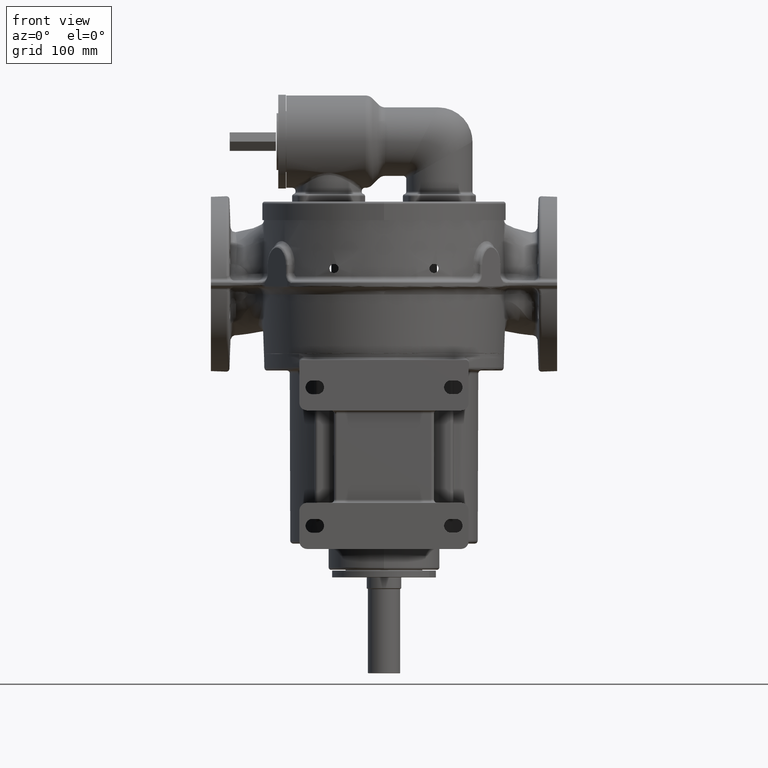
[diagram: clean part render]
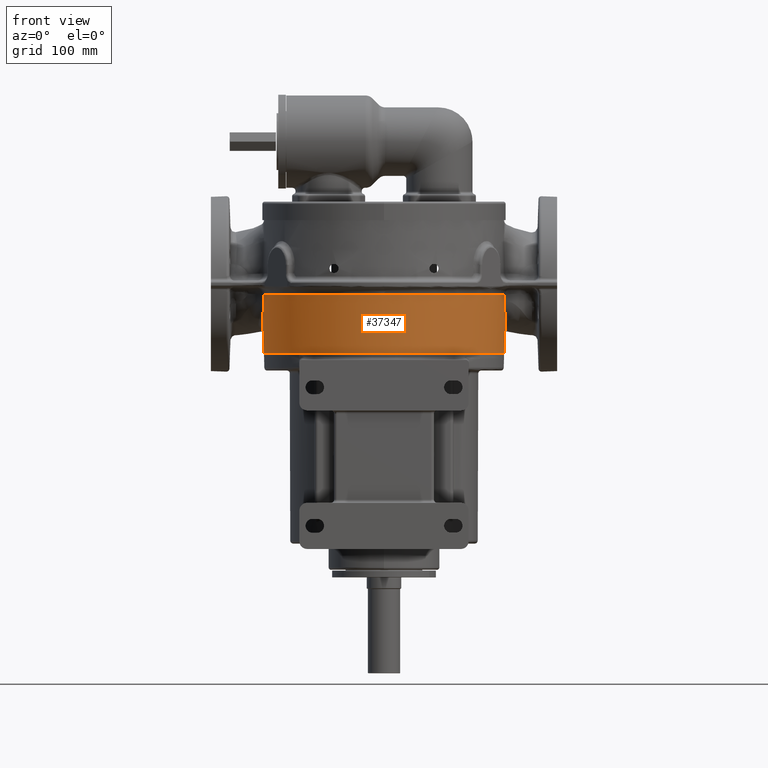
[diagram: same view with one face highlighted and labeled with its STEP entity id]
A machine part, front view. The second image highlights one B-rep face of the part: STEP entity #37347.
In plain terms, the highlighted face is a freeform B-spline surface patch.
Its self-contained STEP definition (entity closure, byte-faithful):
#4950=CARTESIAN_POINT('',(1.561011061925E2,1.800000000014E2,6.395302536963E0));
#4951=CARTESIAN_POINT('',(1.561010881547E2,1.790996274066E2,6.395301918553E0));
#4952=CARTESIAN_POINT('',(1.560855357934E2,1.772977593066E2,6.395294494468E0));
#4953=CARTESIAN_POINT('',(1.560152322695E2,1.745920073633E2,6.395284451513E0));
#4954=CARTESIAN_POINT('',(1.558979004679E2,1.718853024360E2,6.395272905925E0));
#4955=CARTESIAN_POINT('',(1.557334798918E2,1.691792255095E2,6.395263901856E0));
#4956=CARTESIAN_POINT('',(1.555220044078E2,1.664754681074E2,6.395258708309E0));
#4957=CARTESIAN_POINT('',(1.552635771838E2,1.637757000362E2,6.395258328091E0));
#4958=CARTESIAN_POINT('',(1.549583695249E2,1.610815513664E2,6.395262817924E0));
#4959=CARTESIAN_POINT('',(1.546066495006E2,1.583947960569E2,6.395271477037E0));
#4960=CARTESIAN_POINT('',(1.542085807965E2,1.557160031679E2,6.395282790548E0));
#4961=CARTESIAN_POINT('',(1.537642626366E2,1.530454206670E2,6.395294540302E0));
#4962=CARTESIAN_POINT('',(1.532737852086E2,1.503833778918E2,6.395303478121E0));
#4963=CARTESIAN_POINT('',(1.527372148402E2,1.477301779022E2,6.395306572990E0));
#4964=CARTESIAN_POINT('',(1.521545841324E2,1.450860738401E2,6.395306418725E0));
#4965=CARTESIAN_POINT('',(1.515259182001E2,1.424513834775E2,6.395304613126E0));
#4966=CARTESIAN_POINT('',(1.508511658972E2,1.398262338810E2,6.395302497609E0));
#4967=CARTESIAN_POINT('',(1.501305495170E2,1.372118545019E2,6.395300953928E0));
#4968=CARTESIAN_POINT('',(1.493645292038E2,1.346100844681E2,6.395300451416E0));
#4969=CARTESIAN_POINT('',(1.485536136621E2,1.320226232942E2,6.395301022631E0));
#4970=CARTESIAN_POINT('',(1.476983676743E2,1.294510684097E2,6.395302282427E0));
#4971=CARTESIAN_POINT('',(1.467989581345E2,1.268956986596E2,6.395303373951E0));
#4972=CARTESIAN_POINT('',(1.458555587585E2,1.243568855477E2,6.395303187749E0));
#4973=CARTESIAN_POINT('',(1.448683202905E2,1.218349759248E2,6.395299561022E0));
#4974=CARTESIAN_POINT('',(1.438373873194E2,1.193303452807E2,6.395293121773E0));
#4975=CARTESIAN_POINT('',(1.427628981925E2,1.168433908555E2,6.395286432201E0));
#4976=CARTESIAN_POINT('',(1.416449775614E2,1.143745084936E2,6.395280983111E0));
#4977=CARTESIAN_POINT('',(1.404837441043E2,1.119241277934E2,6.395277889190E0));
#4978=CARTESIAN_POINT('',(1.392798857865E2,1.094938278426E2,6.395277697190E0));
#4979=CARTESIAN_POINT('',(1.380341315321E2,1.070850912188E2,6.395280427509E0));
#4980=CARTESIAN_POINT('',(1.367473594186E2,1.046995204745E2,6.395285559130E0));
#4981=CARTESIAN_POINT('',(1.354201318425E2,1.023379876300E2,6.395292045053E0));
#4982=CARTESIAN_POINT('',(1.340526122517E2,1.000006485414E2,6.395298303258E0));
#4983=CARTESIAN_POINT('',(1.326450262397E2,9.768781613449E1,6.395302284679E0));
#4984=CARTESIAN_POINT('',(1.311975626438E2,9.539977215031E1,6.395301234147E0));
#4985=CARTESIAN_POINT('',(1.297103805266E2,9.313678947377E1,6.395297434992E0));
#4986=CARTESIAN_POINT('',(1.281836467180E2,9.089918582971E1,6.395292905379E0));
#4987=CARTESIAN_POINT('',(1.266174209752E2,8.868716362434E1,6.395289110673E0));
#4988=CARTESIAN_POINT('',(1.250121564484E2,8.650150907130E1,6.395287036400E0));
#4989=CARTESIAN_POINT('',(1.233689528869E2,8.434380120879E1,6.395287161151E0));
#4990=CARTESIAN_POINT('',(1.216888449211E2,8.221539061776E1,6.395289451885E0));
#4991=CARTESIAN_POINT('',(1.199730305825E2,8.011769962551E1,6.395293375113E0));
#4992=CARTESIAN_POINT('',(1.182218742209E2,7.805104830256E1,6.395297860026E0));
#4993=CARTESIAN_POINT('',(1.164356246478E2,7.601565166584E1,6.395301473241E0));
#4994=CARTESIAN_POINT('',(1.146145403215E2,7.401176288247E1,6.395301788816E0));
#4995=CARTESIAN_POINT('',(1.127588624084E2,7.203964196743E1,6.395297973759E0));
#4996=CARTESIAN_POINT('',(1.108688203879E2,7.009956331104E1,6.395292831132E0));
#4997=CARTESIAN_POINT('',(1.089446614098E2,6.819184017424E1,6.395287951828E0));
#4998=CARTESIAN_POINT('',(1.069865139335E2,6.631670217544E1,6.395284616494E0));
#4999=CARTESIAN_POINT('',(1.049954306318E2,6.447525522759E1,6.395283549214E0));
#5000=CARTESIAN_POINT('',(1.029726921531E2,6.266871339772E1,6.395284974215E0));
#5001=CARTESIAN_POINT('',(1.009196592105E2,6.089825415515E1,6.395288591196E0));
#5002=CARTESIAN_POINT('',(9.883744180347E1,5.916473575508E1,6.395293600280E0));
#5003=CARTESIAN_POINT('',(9.672625334910E1,5.746824256197E1,6.395298649051E0));
#5004=CARTESIAN_POINT('',(9.458642466054E1,5.580898867224E1,6.395302064397E0));
#5005=CARTESIAN_POINT('',(9.241823915157E1,5.418716956784E1,6.395301003498E0));
#5006=CARTESIAN_POINT('',(9.022197058568E1,5.260299756631E1,6.395296799067E0));
#5007=CARTESIAN_POINT('',(8.799789716745E1,5.105670966014E1,6.395291811282E0));
#5008=CARTESIAN_POINT('',(8.574622958639E1,4.954851856544E1,6.395287520608E0));
#5009=CARTESIAN_POINT('',(8.346740648088E1,4.807881541384E1,6.395285009118E0));
#5010=CARTESIAN_POINT('',(8.116297260504E1,4.664866375100E1,6.395284825069E0));
#5011=CARTESIAN_POINT('',(7.883434741417E1,4.525894852780E1,6.395287008211E0));
#5012=CARTESIAN_POINT('',(7.648318729396E1,4.391060113263E1,6.395291084363E0));
#5013=CARTESIAN_POINT('',(7.411020744526E1,4.260393895643E1,6.395296059036E0));
#5014=CARTESIAN_POINT('',(7.171566161182E1,4.133903481413E1,6.395300483709E0));
#5015=CARTESIAN_POINT('',(6.929990013855E1,4.011603769632E1,6.395302235178E0));
#5016=CARTESIAN_POINT('',(6.686323663148E1,3.893509581703E1,6.395299365579E0));
#5017=CARTESIAN_POINT('',(6.440597391753E1,3.779637365125E1,6.395294576587E0));
#5018=CARTESIAN_POINT('',(6.192845463378E1,3.670007098501E1,6.395289635169E0));
#5019=CARTESIAN_POINT('',(5.943084349647E1,3.564633446666E1,6.395285926284E0));
#5020=CARTESIAN_POINT('',(5.691421675962E1,3.463570232688E1,6.395284300694E0));
#5021=CARTESIAN_POINT('',(5.438028321813E1,3.366889816698E1,6.395285107307E0));
#5022=CARTESIAN_POINT('',(5.183065876973E1,3.274652135572E1,6.395288173040E0));
#5023=CARTESIAN_POINT('',(4.926695671644E1,3.186908348212E1,6.395292824674E0));
#5024=CARTESIAN_POINT('',(4.668949458705E1,3.103661175792E1,6.395297834283E0));
#5025=CARTESIAN_POINT('',(4.409863700357E1,3.024917578264E1,6.395301659711E0));
#5026=CARTESIAN_POINT('',(4.149472512969E1,2.950685416295E1,6.395301566323E0));
#5027=CARTESIAN_POINT('',(3.887809700151E1,2.880974382333E1,6.395297676989E0));
#5028=CARTESIAN_POINT('',(3.624908540243E1,2.815795920436E1,6.395292677223E0));
#5029=CARTESIAN_POINT('',(3.360802780066E1,2.755163248900E1,6.395288093356E0));
#5030=CARTESIAN_POINT('',(3.095523949825E1,2.699091601857E1,6.395285128579E0));
#5031=CARTESIAN_POINT('',(2.829240460029E1,2.647623330755E1,6.395284433582E0));
#5032=CARTESIAN_POINT('',(2.562120015593E1,2.600792255874E1,6.395286157983E0));
#5033=CARTESIAN_POINT('',(2.294347415969E1,2.558627000420E1,6.395289930398E0));
#5034=CARTESIAN_POINT('',(2.026035547525E1,2.521137399884E1,6.395294875802E0));
#5035=CARTESIAN_POINT('',(1.757206295630E1,2.488319834215E1,6.395299594008E0));
#5036=CARTESIAN_POINT('',(1.487899088046E1,2.460175456917E1,6.395302270755E0));
#5037=CARTESIAN_POINT('',(1.218148224292E1,2.436706358036E1,6.395300278137E0));
#5038=CARTESIAN_POINT('',(9.479880907659E0,2.417916588464E1,6.395295743931E0));
#5039=CARTESIAN_POINT('',(6.774566762511E0,2.403812076593E1,6.395290725055E0));
#5040=CARTESIAN_POINT('',(4.065782097333E0,2.394400107494E1,6.395286667043E0));
#5041=CARTESIAN_POINT('',(1.354369898144E0,2.389691642670E1,6.395284543997E0));
#5042=CARTESIAN_POINT('',(-1.357774108197E0,2.389694655894E1,6.395284813695E0));
#5043=CARTESIAN_POINT('',(-4.068975966734E0,2.394408622210E1,6.395287418073E0));
#5044=CARTESIAN_POINT('',(-6.777383150155E0,2.403824496923E1,6.395291791992E0));
#5045=CARTESIAN_POINT('',(-9.482471797201E0,2.417932446016E1,6.395296831877E0));
#5046=CARTESIAN_POINT('',(-1.218393297060E1,2.436725591925E1,6.395301052887E0));
#5047=CARTESIAN_POINT('',(-1.488140519171E1,2.460198565101E1,6.395302025599E0));
#5048=CARTESIAN_POINT('',(-1.757454020262E1,2.488347833017E1,6.395298645198E0));
#5049=CARTESIAN_POINT('',(-2.026299413918E1,2.521171820946E1,6.395293739426E0));
#5050=CARTESIAN_POINT('',(-2.294637520029E1,2.558669902777E1,6.395288933452E0));
#5051=CARTESIAN_POINT('',(-2.562444894069E1,2.600846163545E1,6.395285541561E0));
#5052=CARTESIAN_POINT('',(-2.829574993061E1,2.647684973759E1,6.395284323734E0));
#5053=CARTESIAN_POINT('',(-3.095850969105E1,2.699157883310E1,6.395285541689E0));
#5054=CARTESIAN_POINT('',(-3.361097408040E1,2.755228413610E1,6.395288933683E0));
#5055=CARTESIAN_POINT('',(-3.625171981890E1,2.815858956713E1,6.395293739696E0));
#5056=CARTESIAN_POINT('',(-3.888054251967E1,2.881037345755E1,6.395298645471E0));
#5057=CARTESIAN_POINT('',(-4.149707363356E1,2.950750195634E1,6.395302025601E0));
#5058=CARTESIAN_POINT('',(-4.410098609784E1,3.024986717090E1,6.395301053085E0));
#5059=CARTESIAN_POINT('',(-4.669194182200E1,3.103737794051E1,6.395296838046E0));
#5060=CARTESIAN_POINT('',(-4.926958373206E1,3.186995551426E1,6.395291806576E0));
#5061=CARTESIAN_POINT('',(-5.183359888397E1,3.274755410244E1,6.395287442177E0));
#5062=CARTESIAN_POINT('',(-5.438346132033E1,3.367007831067E1,6.395284846697E0));
#5063=CARTESIAN_POINT('',(-5.691740733548E1,3.463695187366E1,6.395284583797E0));
#5064=CARTESIAN_POINT('',(-5.943387105789E1,3.564758280179E1,6.395286710150E0));
#5065=CARTESIAN_POINT('',(-6.193110950574E1,3.670122053090E1,6.395290766767E0));
#5066=CARTESIAN_POINT('',(-6.440837589845E1,3.779746277502E1,6.395295778384E0));
#5067=CARTESIAN_POINT('',(-6.686546996254E1,3.893615513801E1,6.395300298867E0));
#5068=CARTESIAN_POINT('',(-6.930205830838E1,4.011710697998E1,6.395302269311E0));
#5069=CARTESIAN_POINT('',(-7.171783441329E1,4.134015803422E1,6.395299565970E0));
#5070=CARTESIAN_POINT('',(-7.411248549657E1,4.260516664769E1,6.395294822584E0));
#5071=CARTESIAN_POINT('',(-7.648564748265E1,4.391198162835E1,6.395289855349E0));
#5072=CARTESIAN_POINT('',(-7.883710328121E1,4.526055901497E1,6.395286066772E0));
#5073=CARTESIAN_POINT('',(-8.116583213119E1,4.665040386003E1,6.395284333428E0));
#5074=CARTESIAN_POINT('',(-8.347020973257E1,4.808059005701E1,6.395285027773E0));
#5075=CARTESIAN_POINT('',(-8.574878964523E1,4.955020366442E1,6.395288000671E0));
#5076=CARTESIAN_POINT('',(-8.800015001674E1,5.105824902187E1,6.395292601349E0));
#5077=CARTESIAN_POINT('',(-9.022405089975E1,5.260447168853E1,6.395297625985E0));
#5078=CARTESIAN_POINT('',(-9.242022379964E1,5.418862770902E1,6.395301547002E0));
#5079=CARTESIAN_POINT('',(-9.458839850748E1,5.581049151994E1,6.395301677234E0));
#5080=CARTESIAN_POINT('',(-9.672829335290E1,5.746985180744E1,6.395297892596E0));
#5081=CARTESIAN_POINT('',(-9.883961683971E1,5.916651290020E1,6.395292919985E0));
#5082=CARTESIAN_POINT('',(-1.009220528088E2,6.090027949594E1,6.395288296708E0));
#5083=CARTESIAN_POINT('',(-1.029753126636E2,6.267101147589E1,6.395285247165E0));
#5084=CARTESIAN_POINT('',(-1.049980719837E2,6.447765590533E1,6.395284442804E0));
#5085=CARTESIAN_POINT('',(-1.069890371293E2,6.631907879568E1,6.395286056610E0));
#5086=CARTESIAN_POINT('',(-1.089468710857E2,6.819399640278E1,6.395289741389E0));
#5087=CARTESIAN_POINT('',(-1.108707638465E2,7.010152607853E1,6.395294649588E0));
#5088=CARTESIAN_POINT('',(-1.127606109416E2,7.204146975288E1,6.395299401963E0));
#5089=CARTESIAN_POINT('',(-1.146161615243E2,7.401351683565E1,6.395302235825E0));
#5090=CARTESIAN_POINT('',(-1.164371890135E2,7.601740325263E1,6.395300467150E0));
#5091=CARTESIAN_POINT('',(-1.182234546354E2,7.805288018010E1,6.395296066659E0));
#5092=CARTESIAN_POINT('',(-1.199746854906E2,8.011968511683E1,6.395291149663E0));
#5093=CARTESIAN_POINT('',(-1.216906728758E2,8.221766279571E1,6.395287158839E0));
#5094=CARTESIAN_POINT('',(-1.233708582988E2,8.434625798157E1,6.395285076404E0));
#5095=CARTESIAN_POINT('',(-1.250140151923E2,8.650399532831E1,6.395285360036E0));
#5096=CARTESIAN_POINT('',(-1.266191250790E2,8.868952973273E1,6.395287948686E0));
#5097=CARTESIAN_POINT('',(-1.281851139587E2,9.090129957292E1,6.395292268377E0));
#5098=CARTESIAN_POINT('',(-1.297117195877E2,9.313879012508E1,6.395297206954E0));
#5099=CARTESIAN_POINT('',(-1.311988339655E2,9.540174382165E1,6.395301250232E0));
#5100=CARTESIAN_POINT('',(-1.326462923897E2,9.768985539350E1,6.395301998042E0));
#5101=CARTESIAN_POINT('',(-1.340539237457E2,1.000028438500E2,6.395298077657E0));
#5102=CARTESIAN_POINT('',(-1.354215360704E2,1.023404326625E2,6.395292432970E0));
#5103=CARTESIAN_POINT('',(-1.367489028048E2,1.047023175589E2,6.395286821066E0));
#5104=CARTESIAN_POINT('',(-1.380358485035E2,1.070883372326E2,6.395282676255E0));
#5105=CARTESIAN_POINT('',(-1.392816161162E2,1.094972452186E2,6.395280874116E0));
#5106=CARTESIAN_POINT('',(-1.404853876484E2,1.119275224738E2,6.395281784092E0));
#5107=CARTESIAN_POINT('',(-1.416463993202E2,1.143775825921E2,6.395285245777E0));
#5108=CARTESIAN_POINT('',(-1.427641418092E2,1.168462045534E2,6.395290585970E0));
#5109=CARTESIAN_POINT('',(-1.438385477151E2,1.193330961283E2,6.395296588797E0));
#5110=CARTESIAN_POINT('',(-1.448694636610E2,1.218378209874E2,6.395301637379E0));
#5111=CARTESIAN_POINT('',(-1.458567448341E2,1.243599889603E2,6.395303200263E0));
#5112=CARTESIAN_POINT('',(-1.468002337811E2,1.268992174131E2,6.395302606567E0));
#5113=CARTESIAN_POINT('',(-1.476997519898E2,1.294551020344E2,6.395301416291E0));
#5114=CARTESIAN_POINT('',(-1.485551420260E2,1.320273439963E2,6.395300600210E0));
#5115=CARTESIAN_POINT('',(-1.493660915136E2,1.346152229218E2,6.395300752337E0));
#5116=CARTESIAN_POINT('',(-1.501319905412E2,1.372169174052E2,6.395302028554E0));
#5117=CARTESIAN_POINT('',(-1.508523765636E2,1.398307988519E2,6.395304157577E0));
#5118=CARTESIAN_POINT('',(-1.515268063592E2,1.424549909010E2,6.395306448102E0));
#5119=CARTESIAN_POINT('',(-1.521552306920E2,1.450889098946E2,6.395307767263E0));
#5120=CARTESIAN_POINT('',(-1.527376765015E2,1.477323790737E2,6.395306662102E0));
#5121=CARTESIAN_POINT('',(-1.532741225976E2,1.503851352980E2,6.395300929385E0));
#5122=CARTESIAN_POINT('',(-1.537645266156E2,1.530469327146E2,6.395289286650E0));
#5123=CARTESIAN_POINT('',(-1.542088099696E2,1.557174595379E2,6.395276043932E0));
#5124=CARTESIAN_POINT('',(-1.546068707061E2,1.583963700013E2,6.395263993567E0));
#5125=CARTESIAN_POINT('',(-1.549586060725E2,1.610834753111E2,6.395255338684E0));
#5126=CARTESIAN_POINT('',(-1.552638031481E2,1.637778566459E2,6.395251442647E0));
#5127=CARTESIAN_POINT('',(-1.555221991248E2,1.664777092653E2,6.395252872264E0));
#5128=CARTESIAN_POINT('',(-1.557336294549E2,1.691813940293E2,6.395259400021E0));
#5129=CARTESIAN_POINT('',(-1.558979986092E2,1.718872267570E2,6.395269885458E0));
#5130=CARTESIAN_POINT('',(-1.560152808343E2,1.745935030258E2,6.395282737809E0));
#5131=CARTESIAN_POINT('',(-1.560855473034E2,1.772986305814E2,6.395294213536E0));
#5132=CARTESIAN_POINT('',(-1.561010867243E2,1.790999407367E2,6.395301291862E0));
#5133=CARTESIAN_POINT('',(-1.561011061723E2,1.799999999986E2,6.395301959033E0));
#5135=DIRECTION('',(-3.489949670254E-2,-3.831053119299E-8,9.993908270191E-1));
#5136=VECTOR('',#5135,3.826493888146E1);
#5137=CARTESIAN_POINT('',(-1.561011061723E2,1.799999999986E2,6.395301959033E0));
#5138=LINE('',#5137,#5136);
#5139=CARTESIAN_POINT('',(-1.574365332806E2,1.799999985326E2,4.463693087361E1));
#5140=CARTESIAN_POINT('',(-1.574705101607E2,1.787291430152E2,4.561096933374E1));
#5141=CARTESIAN_POINT('',(-1.575074001886E2,1.763169526623E2,4.755767057867E1));
#5142=CARTESIAN_POINT('',(-1.574964064174E2,1.731590694879E2,5.032316745607E1));
#5143=CARTESIAN_POINT('',(-1.574351777946E2,1.701114821600E2,5.319924988413E1));
#5144=CARTESIAN_POINT('',(-1.573196541213E2,1.669943816010E2,5.634693446265E1));
#5145=CARTESIAN_POINT('',(-1.572055504602E2,1.648297872006E2,5.883642655558E1));
#5146=CARTESIAN_POINT('',(-1.571403439119E2,1.637408037734E2,6.017025638773E1));
#5148=CARTESIAN_POINT('',(-1.571403439119E2,1.637408037734E2,6.017025638773E1));
#5149=CARTESIAN_POINT('',(-1.570938505524E2,1.629632393486E2,6.112095187555E1));
#5150=CARTESIAN_POINT('',(-1.569985231517E2,1.614908936678E2,6.310102839909E1));
#5151=CARTESIAN_POINT('',(-1.568538413817E2,1.594286426921E2,6.630548404181E1));
#5152=CARTESIAN_POINT('',(-1.567524447110E2,1.578082047495E2,6.975638946629E1));
#5153=CARTESIAN_POINT('',(-1.567471999564E2,1.571747802268E2,7.224177585756E1));
#5154=CARTESIAN_POINT('',(-1.567692603165E2,1.570120386210E2,7.353627516596E1));
#5156=CARTESIAN_POINT('',(-1.567692603165E2,1.570120386210E2,7.353627516596E1));
#5157=CARTESIAN_POINT('',(-1.567820434158E2,1.569180724468E2,7.428487652171E1));
#5158=CARTESIAN_POINT('',(-1.568085630558E2,1.567378970251E2,7.579571350347E1));
#5159=CARTESIAN_POINT('',(-1.568533452914E2,1.564908297176E2,7.810357065123E1));
#5160=CARTESIAN_POINT('',(-1.569031900559E2,1.562728130781E2,8.045267019919E1));
#5161=CARTESIAN_POINT('',(-1.569395394291E2,1.561373987570E2,8.204587468938E1));
#5162=CARTESIAN_POINT('',(-1.569582348904E2,1.560741978231E2,8.284907334391E1));
#5164=CARTESIAN_POINT('',(-1.569582988004E2,1.560772095344E2,8.284898593523E1));
#5165=CARTESIAN_POINT('',(-1.568199911907E2,1.551699129329E2,8.284898515595E1));
#5166=CARTESIAN_POINT('',(-1.565278378664E2,1.533585587550E2,8.284897973401E1));
#5167=CARTESIAN_POINT('',(-1.560433383644E2,1.506537910314E2,8.284898420123E1));
#5168=CARTESIAN_POINT('',(-1.555119512293E2,1.479569165954E2,8.284898749403E1));
#5169=CARTESIAN_POINT('',(-1.549340566147E2,1.452701463988E2,8.284899200536E1));
#5170=CARTESIAN_POINT('',(-1.543097868848E2,1.425939262476E2,8.284899528296E1));
#5171=CARTESIAN_POINT('',(-1.536393541366E2,1.399291518476E2,8.284899486409E1));
#5172=CARTESIAN_POINT('',(-1.529229843531E2,1.372766510060E2,8.284899058969E1));
#5173=CARTESIAN_POINT('',(-1.521608139473E2,1.346369008393E2,8.284898530699E1));
#5174=CARTESIAN_POINT('',(-1.513529305484E2,1.320102512269E2,8.284898058894E1));
#5175=CARTESIAN_POINT('',(-1.504993625411E2,1.293969415055E2,8.284897766885E1));
#5176=CARTESIAN_POINT('',(-1.496003777644E2,1.267979751977E2,8.284897718657E1));
#5177=CARTESIAN_POINT('',(-1.486565359230E2,1.242150392061E2,8.284897924718E1));
#5178=CARTESIAN_POINT('',(-1.476684451376E2,1.216497186697E2,8.284898340292E1));
#5179=CARTESIAN_POINT('',(-1.466366759546E2,1.191033013841E2,8.284898865404E1));
#5180=CARTESIAN_POINT('',(-1.455613773370E2,1.165759754887E2,8.284899349029E1));
#5181=CARTESIAN_POINT('',(-1.444427337252E2,1.140680833689E2,8.284899577527E1));
#5182=CARTESIAN_POINT('',(-1.432808988773E2,1.115799343339E2,8.284899319991E1));
#5183=CARTESIAN_POINT('',(-1.420760018244E2,1.091118331539E2,8.284898846244E1));
#5184=CARTESIAN_POINT('',(-1.408281784470E2,1.066641357575E2,8.284898346327E1));
#5185=CARTESIAN_POINT('',(-1.395374599781E2,1.042370492254E2,8.284897965527E1));
#5186=CARTESIAN_POINT('',(-1.382044022601E2,1.018317730739E2,8.284897794497E1));
#5187=CARTESIAN_POINT('',(-1.368298367464E2,9.944986956080E1,8.284897870921E1));
#5188=CARTESIAN_POINT('',(-1.354146759415E2,9.709287705780E1,8.284898177909E1));
#5189=CARTESIAN_POINT('',(-1.339596063302E2,9.476181919970E1,8.284898646260E1));
#5190=CARTESIAN_POINT('',(-1.324648128557E2,9.245689001791E1,8.284899148535E1));
#5191=CARTESIAN_POINT('',(-1.309305553447E2,9.017844227080E1,8.284899524613E1));
#5192=CARTESIAN_POINT('',(-1.293570611710E2,8.792680203798E1,8.284899488076E1));
#5193=CARTESIAN_POINT('',(-1.277446070499E2,8.570238952212E1,8.284899068226E1));
#5194=CARTESIAN_POINT('',(-1.260934776435E2,8.350564468317E1,8.284898543288E1));
#5195=CARTESIAN_POINT('',(-1.2440389E2,8.133693887746E1,8.284898072034E1));
#5196=CARTESIAN_POINT('',(-1.226765769515E2,7.919729358488E1,8.284897777920E1));
#5197=CARTESIAN_POINT('',(-1.209124137936E2,7.708782469650E1,8.284897725540E1));
#5198=CARTESIAN_POINT('',(-1.191123590528E2,7.500965660572E1,8.284897926168E1));
#5199=CARTESIAN_POINT('',(-1.172770703156E2,7.296349195715E1,8.284898336360E1));
#5200=CARTESIAN_POINT('',(-1.154069103236E2,7.094969102250E1,8.284898858153E1));
#5201=CARTESIAN_POINT('',(-1.135022992156E2,6.896868525786E1,8.284899342134E1));
#5202=CARTESIAN_POINT('',(-1.115636543760E2,6.702090426743E1,8.284899577232E1));
#5203=CARTESIAN_POINT('',(-1.095914472028E2,6.510683132094E1,8.284899331035E1));
#5204=CARTESIAN_POINT('',(-1.075861437406E2,6.322693807630E1,8.284898873382E1));
#5205=CARTESIAN_POINT('',(-1.055482194980E2,6.138170267894E1,8.284898395295E1));
#5206=CARTESIAN_POINT('',(-1.034783936687E2,5.957180744509E1,8.284898040702E1));
#5207=CARTESIAN_POINT('',(-1.013774012450E2,5.779791249416E1,8.284897897121E1));
#5208=CARTESIAN_POINT('',(-9.924599634514E1,5.606066088896E1,8.284897997543E1));
#5209=CARTESIAN_POINT('',(-9.708492207601E1,5.436065428124E1,8.284898319646E1));
#5210=CARTESIAN_POINT('',(-9.489492880324E1,5.269847130522E1,8.284898785866E1));
#5211=CARTESIAN_POINT('',(-9.267679895689E1,5.107468433242E1,8.284899264426E1));
#5212=CARTESIAN_POINT('',(-9.043113663093E1,4.948971215659E1,8.284899566992E1));
#5213=CARTESIAN_POINT('',(-8.815851312598E1,4.794394359939E1,8.284899459969E1));
#5214=CARTESIAN_POINT('',(-8.585952100089E1,4.643777413661E1,8.284899170471E1));
#5215=CARTESIAN_POINT('',(-8.353465805693E1,4.497153299747E1,8.284898865791E1));
#5216=CARTESIAN_POINT('',(-8.118439739765E1,4.354553595261E1,8.284898662986E1));
#5217=CARTESIAN_POINT('',(-7.880920870271E1,4.216010488737E1,8.284898625820E1));
#5218=CARTESIAN_POINT('',(-7.641025111350E1,4.081594449968E1,8.284898765105E1));
#5219=CARTESIAN_POINT('',(-7.398876973941E1,3.951374309035E1,8.284899038059E1));
#5220=CARTESIAN_POINT('',(-7.154585568383E1,3.825404510753E1,8.284899349153E1));
#5221=CARTESIAN_POINT('',(-6.908183807740E1,3.703698153797E1,8.284899548729E1));
#5222=CARTESIAN_POINT('',(-6.659707571547E1,3.586272207217E1,8.284899440649E1));
#5223=CARTESIAN_POINT('',(-6.409212410275E1,3.473154040746E1,8.284899219551E1));
#5224=CARTESIAN_POINT('',(-6.156788365748E1,3.364385402113E1,8.284899022542E1));
#5225=CARTESIAN_POINT('',(-5.902519594727E1,3.260002759290E1,8.284898935521E1));
#5226=CARTESIAN_POINT('',(-5.646494555913E1,3.160042027225E1,8.284898991179E1));
#5227=CARTESIAN_POINT('',(-5.388790829155E1,3.064532657190E1,8.284899168456E1));
#5228=CARTESIAN_POINT('',(-5.129482616682E1,2.973501471364E1,8.284899395802E1));
#5229=CARTESIAN_POINT('',(-4.868645445444E1,2.886974485533E1,8.284899539064E1));
#5230=CARTESIAN_POINT('',(-4.606354580945E1,2.804976268373E1,8.284899448451E1));
#5231=CARTESIAN_POINT('',(-4.342676332945E1,2.727527600086E1,8.284899302073E1));
#5232=CARTESIAN_POINT('',(-4.077678454237E1,2.654649089841E1,8.284899199915E1));
#5233=CARTESIAN_POINT('',(-3.811425630929E1,2.586360045887E1,8.284899197237E1));
#5234=CARTESIAN_POINT('',(-3.544008021683E1,2.522685244607E1,8.284899294004E1));
#5235=CARTESIAN_POINT('',(-3.275521639633E1,2.463648360010E1,8.284899442232E1));
#5236=CARTESIAN_POINT('',(-3.006065500650E1,2.409270969603E1,8.284899526592E1));
#5237=CARTESIAN_POINT('',(-2.735719711666E1,2.359568475067E1,8.284899437130E1));
#5238=CARTESIAN_POINT('',(-2.464547711683E1,2.314552341601E1,8.284899331925E1));
#5239=CARTESIAN_POINT('',(-2.192613149641E1,2.274234005352E1,8.284899284061E1));
#5240=CARTESIAN_POINT('',(-1.919998423746E1,2.238627036068E1,8.284899324018E1));
#5241=CARTESIAN_POINT('',(-1.646799897481E1,2.207744878204E1,8.284899426901E1));
#5242=CARTESIAN_POINT('',(-1.373113299291E1,2.181598370063E1,8.284899520167E1));
#5243=CARTESIAN_POINT('',(-1.099022207563E1,2.160195088899E1,8.284899465756E1));
#5244=CARTESIAN_POINT('',(-8.246020369430E0,2.143540708802E1,8.284899374656E1));
#5245=CARTESIAN_POINT('',(-5.499317488407E0,2.131640123173E1,8.284899343542E1));
#5246=CARTESIAN_POINT('',(-2.750841667167E0,2.124496690984E1,8.284899346120E1));
#5247=CARTESIAN_POINT('',(-9.179725391884E-1,2.122908364546E1,
8.284899485587E1));
#5248=CARTESIAN_POINT('',(-1.530663776757E-3,2.122907204473E1,
8.284899496702E1));
#5250=CARTESIAN_POINT('',(-1.530663776757E-3,2.122907204473E1,
8.284899496702E1));
#5251=CARTESIAN_POINT('',(9.149660657934E-1,2.122906031221E1,8.284899508333E1));
#5252=CARTESIAN_POINT('',(2.747938467530E0,2.124491882845E1,8.284899513466E1));
#5253=CARTESIAN_POINT('',(5.496450205830E0,2.131630054354E1,8.284899410662E1));
#5254=CARTESIAN_POINT('',(8.243368762556E0,2.143526798062E1,8.284899273343E1));
#5255=CARTESIAN_POINT('',(1.098781120773E1,2.160178228486E1,8.284899206368E1));
#5256=CARTESIAN_POINT('',(1.372895766584E1,2.181579382318E1,8.284899240901E1));
#5257=CARTESIAN_POINT('',(1.646597409011E1,2.207723713274E1,8.284899359112E1));
#5258=CARTESIAN_POINT('',(1.919802609665E1,2.238603140158E1,8.284899497460E1));
#5259=CARTESIAN_POINT('',(2.192431318236E1,2.274208501111E1,8.284899509424E1));
#5260=CARTESIAN_POINT('',(2.464406687849E1,2.314529849002E1,8.284899323117E1));
#5261=CARTESIAN_POINT('',(2.735650917386E1,2.359555946117E1,8.284899129350E1));
#5262=CARTESIAN_POINT('',(3.006087618819E1,2.409274710587E1,8.284899016714E1));
#5263=CARTESIAN_POINT('',(3.275625779003E1,2.463669896559E1,8.284899034026E1));
#5264=CARTESIAN_POINT('',(3.544173452731E1,2.522722803810E1,8.284899174693E1));
#5265=CARTESIAN_POINT('',(3.811638190797E1,2.586412343382E1,8.284899375968E1));
#5266=CARTESIAN_POINT('',(4.077933776701E1,2.654716602269E1,8.284899537987E1));
#5267=CARTESIAN_POINT('',(4.342996042214E1,2.727618028661E1,8.284899450076E1));
#5268=CARTESIAN_POINT('',(4.606758902181E1,2.805098240253E1,8.284899169424E1));
#5269=CARTESIAN_POINT('',(4.869153779700E1,2.887137562536E1,8.284898893133E1));
#5270=CARTESIAN_POINT('',(5.130106310622E1,2.973713589911E1,8.284898720844E1));
#5271=CARTESIAN_POINT('',(5.389547595265E1,3.064804814808E1,8.284898711466E1));
#5272=CARTESIAN_POINT('',(5.647383813191E1,3.160379566485E1,8.284898867361E1));
#5273=CARTESIAN_POINT('',(5.903510783705E1,3.260399161768E1,8.284899139656E1));
#5274=CARTESIAN_POINT('',(6.157825562116E1,3.364821530477E1,8.284899422636E1));
#5275=CARTESIAN_POINT('',(6.410261944735E1,3.473617050873E1,8.284899572512E1));
#5276=CARTESIAN_POINT('',(6.660759197628E1,3.586758036189E1,8.284899341013E1));
#5277=CARTESIAN_POINT('',(6.909254437455E1,3.704215302411E1,8.284898895376E1));
#5278=CARTESIAN_POINT('',(7.155690286034E1,3.825961878609E1,8.284898444897E1));
#5279=CARTESIAN_POINT('',(7.400008856727E1,3.951970342383E1,8.284898120167E1));
#5280=CARTESIAN_POINT('',(7.642159484980E1,4.082217236716E1,8.284898004087E1));
#5281=CARTESIAN_POINT('',(7.882053015283E1,4.216657798924E1,8.284898123271E1));
#5282=CARTESIAN_POINT('',(8.119573313711E1,4.355227934623E1,8.284898449612E1));
#5283=CARTESIAN_POINT('',(8.354607252668E1,4.497859455904E1,8.284898901109E1));
#5284=CARTESIAN_POINT('',(8.587068935020E1,4.644495642703E1,8.284899337776E1));
#5285=CARTESIAN_POINT('',(8.816916364291E1,4.795105873696E1,8.284899580412E1));
#5286=CARTESIAN_POINT('',(9.044099629467E1,4.949655126169E1,8.284899343693E1));
#5287=CARTESIAN_POINT('',(9.268570690074E1,5.108109594853E1,8.284898824861E1));
#5288=CARTESIAN_POINT('',(9.490286766039E1,5.270439752629E1,8.284898256222E1));
#5289=CARTESIAN_POINT('',(9.709202241628E1,5.436614618902E1,8.284897793349E1));
#5290=CARTESIAN_POINT('',(9.925280457700E1,5.606611236481E1,8.284897543905E1));
#5291=CARTESIAN_POINT('',(1.013843641612E2,5.780368621449E1,8.284897559518E1));
#5292=CARTESIAN_POINT('',(1.034855077719E2,5.957791922161E1,8.284897837020E1));
#5293=CARTESIAN_POINT('',(1.055551397498E2,6.138786501110E1,8.284898318581E1));
#5294=CARTESIAN_POINT('',(1.075922740826E2,6.323259532466E1,8.284898889419E1));
#5295=CARTESIAN_POINT('',(1.095966175820E2,6.511177332005E1,8.284899389412E1));
#5296=CARTESIAN_POINT('',(1.115678121135E2,6.702502072120E1,8.284899573624E1));
#5297=CARTESIAN_POINT('',(1.135055088043E2,6.897197593285E1,8.284899266991E1));
#5298=CARTESIAN_POINT('',(1.154093775229E2,7.095230909077E1,8.284898765461E1));
#5299=CARTESIAN_POINT('',(1.172790860569E2,7.296570362709E1,8.284898249393E1));
#5300=CARTESIAN_POINT('',(1.191143158694E2,7.501187405186E1,8.284897863928E1));
#5301=CARTESIAN_POINT('',(1.209146357558E2,7.709043152142E1,8.284897696951E1));
#5302=CARTESIAN_POINT('',(1.226789212018E2,7.920014505728E1,8.284897784373E1));
#5303=CARTESIAN_POINT('',(1.244061913099E2,8.133984312732E1,8.284898107550E1));
#5304=CARTESIAN_POINT('',(1.260954055059E2,8.350817001522E1,8.284898595487E1));
#5305=CARTESIAN_POINT('',(1.277461181048E2,8.570444273105E1,8.284899119229E1));
#5306=CARTESIAN_POINT('',(1.293581596505E2,8.792835174454E1,8.284899516071E1));
#5307=CARTESIAN_POINT('',(1.309312842895E2,9.017951049876E1,8.284899502582E1));
#5308=CARTESIAN_POINT('',(1.324652574515E2,9.245756710690E1,8.284899055944E1));
#5309=CARTESIAN_POINT('',(1.339598603502E2,9.476222130008E1,8.284898476044E1));
#5310=CARTESIAN_POINT('',(1.354148333439E2,9.709313520099E1,8.284897933372E1));
#5311=CARTESIAN_POINT('',(1.368299933658E2,9.945013493908E1,8.284897565048E1));
#5312=CARTESIAN_POINT('',(1.382046165154E2,1.018321501979E2,8.284897448560E1));
#5313=CARTESIAN_POINT('',(1.395377745958E2,1.042376252221E2,8.284897607783E1));
#5314=CARTESIAN_POINT('',(1.408286450579E2,1.066650280028E2,8.284898010353E1));
#5315=CARTESIAN_POINT('',(1.420765583530E2,1.091129467338E2,8.284898570114E1));
#5316=CARTESIAN_POINT('',(1.432814746950E2,1.115811399849E2,8.284899141964E1));
#5317=CARTESIAN_POINT('',(1.444432727534E2,1.140692656844E2,8.284899545235E1));
#5318=CARTESIAN_POINT('',(1.455618314081E2,1.165770206484E2,8.284899478483E1));
#5319=CARTESIAN_POINT('',(1.466370114125E2,1.191041133306E2,8.284899092942E1));
#5320=CARTESIAN_POINT('',(1.476686397723E2,1.216502176945E2,8.284898628371E1));
#5321=CARTESIAN_POINT('',(1.486565824647E2,1.242151665835E2,8.284898235810E1));
#5322=CARTESIAN_POINT('',(1.496004237337E2,1.267981021079E2,8.284898022607E1));
#5323=CARTESIAN_POINT('',(1.504994777353E2,1.293972764533E2,8.284898039438E1));
#5324=CARTESIAN_POINT('',(1.513531880993E2,1.320110558627E2,8.284898282424E1));
#5325=CARTESIAN_POINT('',(1.521611000114E2,1.346378604630E2,8.284898693942E1));
#5326=CARTESIAN_POINT('',(1.529232173209E2,1.372774902369E2,8.284899157556E1));
#5327=CARTESIAN_POINT('',(1.536394877423E2,1.399296722543E2,8.284899521287E1));
#5328=CARTESIAN_POINT('',(1.543098343874E2,1.425941295660E2,8.284899512209E1));
#5329=CARTESIAN_POINT('',(1.549340439743E2,1.452700955392E2,8.284899257780E1));
#5330=CARTESIAN_POINT('',(1.555119070679E2,1.479567054391E2,8.284898924661E1));
#5331=CARTESIAN_POINT('',(1.560432884435E2,1.506535236380E2,8.284898793425E1));
#5332=CARTESIAN_POINT('',(1.565278241793E2,1.533584662600E2,8.284898346342E1));
#5333=CARTESIAN_POINT('',(1.568199843973E2,1.551698798842E2,8.284899334873E1));
#5334=CARTESIAN_POINT('',(1.569582989926E2,1.560772088776E2,8.284899421260E1));
#5336=CARTESIAN_POINT('',(1.567692619977E2,1.570120400099E2,7.353631703127E1));
#5337=CARTESIAN_POINT('',(1.567820445137E2,1.569180780697E2,7.428488454355E1));
#5338=CARTESIAN_POINT('',(1.568085603940E2,1.567378769216E2,7.579580092493E1));
#5339=CARTESIAN_POINT('',(1.568533596648E2,1.564908508546E2,7.810361392E1));
#5340=CARTESIAN_POINT('',(1.569031411698E2,1.562727193386E2,8.045270240251E1));
#5341=CARTESIAN_POINT('',(1.569396464380E2,1.561375934926E2,8.204588453029E1));
#5342=CARTESIAN_POINT('',(1.569583417381E2,1.560743930463E2,8.284907648119E1));
#5344=CARTESIAN_POINT('',(1.571403398879E2,1.637408013944E2,6.017020073815E1));
#5345=CARTESIAN_POINT('',(1.570991296024E2,1.630510553105E2,6.101377949819E1));
#5346=CARTESIAN_POINT('',(1.570110765894E2,1.616715986267E2,6.285003193523E1));
#5347=CARTESIAN_POINT('',(1.568563314060E2,1.594698579684E2,6.620325160715E1));
#5348=CARTESIAN_POINT('',(1.567490762782E2,1.577494148326E2,6.989710216484E1));
#5349=CARTESIAN_POINT('',(1.567483576600E2,1.571654961786E2,7.231415238202E1));
#5350=CARTESIAN_POINT('',(1.567692619977E2,1.570120400099E2,7.353631703127E1));
#5352=CARTESIAN_POINT('',(1.574365338770E2,1.800000033450E2,4.463694795146E1));
#5353=CARTESIAN_POINT('',(1.574774195154E2,1.784768254242E2,4.580484164760E1));
#5354=CARTESIAN_POINT('',(1.575149254611E2,1.755626759209E2,4.817803593857E1));
#5355=CARTESIAN_POINT('',(1.574790024912E2,1.717465759351E2,5.161535185035E1));
#5356=CARTESIAN_POINT('',(1.573622418407E2,1.678552674432E2,5.541534645257E1));
#5357=CARTESIAN_POINT('',(1.572225083937E2,1.651097554219E2,5.849354666409E1));
#5358=CARTESIAN_POINT('',(1.571403398879E2,1.637408013944E2,6.017020073815E1));
#12227=DIRECTION('',(3.489949670270E-2,8.737912125574E-8,9.993908270191E-1));
#12228=VECTOR('',#12227,3.826495539143E1);
#12229=CARTESIAN_POINT('',(1.561011061925E2,1.800000000014E2,6.395302536963E0));
#12230=LINE('',#12229,#12228);
#12259=CARTESIAN_POINT('',(1.574365338770E2,1.800000033450E2,4.463694795146E1));
#12489=CARTESIAN_POINT('',(-1.574365332806E2,1.799999985326E2,
4.463693087361E1));
#32953=VERTEX_POINT('',#12489);
#32955=VERTEX_POINT('',#5146);
#32957=VERTEX_POINT('',#5154);
#32968=VERTEX_POINT('',#12259);
#32970=VERTEX_POINT('',#5358);
#32972=VERTEX_POINT('',#5350);
#32977=VERTEX_POINT('',#4950);
#32978=VERTEX_POINT('',#5133);
#33253=VERTEX_POINT('',#5250);
#33254=VERTEX_POINT('',#5334);
#33255=VERTEX_POINT('',#5164);
#37223=CARTESIAN_POINT('',(-1.557397834565E2,1.897983166543E2,
4.866177295582E0));
#37224=CARTESIAN_POINT('',(-1.566634959425E2,1.898564317180E2,
3.137014152567E1));
#37225=CARTESIAN_POINT('',(-1.575872084286E2,1.899145467817E2,
5.787410575575E1));
#37226=CARTESIAN_POINT('',(-1.585109209146E2,1.899726618454E2,
8.437806998583E1));
#37227=CARTESIAN_POINT('',(-1.558423911885E2,1.881674134557E2,
4.866177295582E0));
#37228=CARTESIAN_POINT('',(-1.567667122541E2,1.882158554249E2,
3.137014152567E1));
#37229=CARTESIAN_POINT('',(-1.576910333197E2,1.882642973941E2,
5.787410575575E1));
#37230=CARTESIAN_POINT('',(-1.586153543852E2,1.883127393632E2,
8.437806998583E1));
#37231=CARTESIAN_POINT('',(-1.559578749342E2,1.857186407021E2,
4.866177295582E0));
#37232=CARTESIAN_POINT('',(-1.568828809485E2,1.857525586883E2,
3.137014152567E1));
#37233=CARTESIAN_POINT('',(-1.578078869629E2,1.857864766745E2,
5.787410575575E1));
#37234=CARTESIAN_POINT('',(-1.587328929773E2,1.858203946606E2,
8.437806998583E1));
#37235=CARTESIAN_POINT('',(-1.560348682290E2,1.824511918897E2,
4.866177295582E0));
#37236=CARTESIAN_POINT('',(-1.569603309004E2,1.824657302209E2,
3.137014152567E1));
#37237=CARTESIAN_POINT('',(-1.578857935718E2,1.824802685521E2,
5.787410575575E1));
#37238=CARTESIAN_POINT('',(-1.588112562432E2,1.824948068833E2,
8.437806998583E1));
#37239=CARTESIAN_POINT('',(-1.561280358571E2,1.706037602214E2,
4.866177295582E0));
#37240=CARTESIAN_POINT('',(-1.570540511175E2,1.705480299269E2,
3.137014152567E1));
#37241=CARTESIAN_POINT('',(-1.579800663780E2,1.704922996323E2,
5.787410575575E1));
#37242=CARTESIAN_POINT('',(-1.589060816385E2,1.704365693378E2,
8.437806998583E1));
#37243=CARTESIAN_POINT('',(-1.540359440893E2,1.493603947565E2,
4.866177295582E0));
#37244=CARTESIAN_POINT('',(-1.549495508871E2,1.491786673565E2,
3.137014152567E1));
#37245=CARTESIAN_POINT('',(-1.558631576849E2,1.489969399564E2,
5.787410575575E1));
#37246=CARTESIAN_POINT('',(-1.567767644827E2,1.488152125564E2,
8.437806998583E1));
#37247=CARTESIAN_POINT('',(-1.450986095650E2,1.198981712193E2,
4.866177295582E0));
#37248=CARTESIAN_POINT('',(-1.459592078937E2,1.195416996200E2,
3.137014152567E1));
#37249=CARTESIAN_POINT('',(-1.468198062225E2,1.191852280207E2,
5.787410575575E1));
#37250=CARTESIAN_POINT('',(-1.476804045512E2,1.188287564215E2,
8.437806998583E1));
#37251=CARTESIAN_POINT('',(-1.305853185414E2,9.274568539175E1,
4.866177295582E0));
#37252=CARTESIAN_POINT('',(-1.313598366931E2,9.222816894171E1,
3.137014152567E1));
#37253=CARTESIAN_POINT('',(-1.321343548449E2,9.171065249167E1,
5.787410575575E1));
#37254=CARTESIAN_POINT('',(-1.329088729966E2,9.119313604163E1,
8.437806998583E1));
#37255=CARTESIAN_POINT('',(-1.110536797106E2,6.894631836454E1,
4.866177295582E0));
#37256=CARTESIAN_POINT('',(-1.117123532254E2,6.828764483829E1,
3.137014152567E1));
#37257=CARTESIAN_POINT('',(-1.123710267403E2,6.762897131203E1,
5.787410575575E1));
#37258=CARTESIAN_POINT('',(-1.130297002551E2,6.697029778577E1,
8.437806998583E1));
#37259=CARTESIAN_POINT('',(-8.725431754924E1,4.941468621699E1,
4.866177295582E0));
#37260=CARTESIAN_POINT('',(-8.777183401673E1,4.864016809350E1,
3.137014152567E1));
#37261=CARTESIAN_POINT('',(-8.828935048421E1,4.786564997001E1,
5.787410575575E1));
#37262=CARTESIAN_POINT('',(-8.880686695170E1,4.709113184652E1,
8.437806998583E1));
#37263=CARTESIAN_POINT('',(-6.010181894159E1,3.490137332621E1,
4.866177295582E0));
#37264=CARTESIAN_POINT('',(-6.045829048250E1,3.404077489598E1,
3.137014152567E1));
#37265=CARTESIAN_POINT('',(-6.081476202341E1,3.318017646576E1,
5.787410575575E1));
#37266=CARTESIAN_POINT('',(-6.117123356433E1,3.231957803553E1,
8.437806998583E1));
#37267=CARTESIAN_POINT('',(-3.063964165901E1,2.596411958748E1,
4.866177295582E0));
#37268=CARTESIAN_POINT('',(-3.082136927503E1,2.505051316735E1,
3.137014152567E1));
#37269=CARTESIAN_POINT('',(-3.100309689106E1,2.413690674722E1,
5.787410575575E1));
#37270=CARTESIAN_POINT('',(-3.118482450709E1,2.322330032709E1,
8.437806998583E1));
#37271=CARTESIAN_POINT('',(0.E0,2.294637826262E1,4.866177295582E0));
#37272=CARTESIAN_POINT('',(0.E0,2.201487323445E1,3.137014152567E1));
#37273=CARTESIAN_POINT('',(0.E0,2.108336820627E1,5.787410575575E1));
#37274=CARTESIAN_POINT('',(-1.065814103640E-14,2.015186317809E1,
8.437806998583E1));
#37275=CARTESIAN_POINT('',(3.063964165901E1,2.596411958748E1,4.866177295582E0));
#37276=CARTESIAN_POINT('',(3.082136927503E1,2.505051316735E1,3.137014152567E1));
#37277=CARTESIAN_POINT('',(3.100309689106E1,2.413690674722E1,5.787410575575E1));
#37278=CARTESIAN_POINT('',(3.118482450709E1,2.322330032709E1,8.437806998583E1));
#37279=CARTESIAN_POINT('',(6.010181894159E1,3.490137332621E1,4.866177295582E0));
#37280=CARTESIAN_POINT('',(6.045829048250E1,3.404077489598E1,3.137014152567E1));
#37281=CARTESIAN_POINT('',(6.081476202341E1,3.318017646576E1,5.787410575575E1));
#37282=CARTESIAN_POINT('',(6.117123356433E1,3.231957803553E1,8.437806998583E1));
#37283=CARTESIAN_POINT('',(8.725431754924E1,4.941468621699E1,4.866177295582E0));
#37284=CARTESIAN_POINT('',(8.777183401673E1,4.864016809350E1,3.137014152567E1));
#37285=CARTESIAN_POINT('',(8.828935048421E1,4.786564997001E1,5.787410575575E1));
#37286=CARTESIAN_POINT('',(8.880686695170E1,4.709113184652E1,8.437806998583E1));
#37287=CARTESIAN_POINT('',(1.110536797106E2,6.894631836454E1,4.866177295582E0));
#37288=CARTESIAN_POINT('',(1.117123532254E2,6.828764483829E1,3.137014152567E1));
#37289=CARTESIAN_POINT('',(1.123710267403E2,6.762897131203E1,5.787410575575E1));
#37290=CARTESIAN_POINT('',(1.130297002551E2,6.697029778577E1,8.437806998583E1));
#37291=CARTESIAN_POINT('',(1.305853185414E2,9.274568539175E1,4.866177295582E0));
#37292=CARTESIAN_POINT('',(1.313598366931E2,9.222816894171E1,3.137014152567E1));
#37293=CARTESIAN_POINT('',(1.321343548449E2,9.171065249167E1,5.787410575575E1));
#37294=CARTESIAN_POINT('',(1.329088729966E2,9.119313604163E1,8.437806998583E1));
#37295=CARTESIAN_POINT('',(1.450986095650E2,1.198981712193E2,4.866177295582E0));
#37296=CARTESIAN_POINT('',(1.459592078937E2,1.195416996200E2,3.137014152567E1));
#37297=CARTESIAN_POINT('',(1.468198062225E2,1.191852280207E2,5.787410575575E1));
#37298=CARTESIAN_POINT('',(1.476804045512E2,1.188287564215E2,8.437806998583E1));
#37299=CARTESIAN_POINT('',(1.540359440893E2,1.493603947565E2,4.866177295582E0));
#37300=CARTESIAN_POINT('',(1.549495508871E2,1.491786673565E2,3.137014152567E1));
#37301=CARTESIAN_POINT('',(1.558631576849E2,1.489969399564E2,5.787410575575E1));
#37302=CARTESIAN_POINT('',(1.567767644827E2,1.488152125564E2,8.437806998583E1));
#37303=CARTESIAN_POINT('',(1.561280358571E2,1.706037602214E2,4.866177295582E0));
#37304=CARTESIAN_POINT('',(1.570540511175E2,1.705480299269E2,3.137014152567E1));
#37305=CARTESIAN_POINT('',(1.579800663780E2,1.704922996323E2,5.787410575575E1));
#37306=CARTESIAN_POINT('',(1.589060816385E2,1.704365693378E2,8.437806998583E1));
#37307=CARTESIAN_POINT('',(1.560348682290E2,1.824511918897E2,4.866177295582E0));
#37308=CARTESIAN_POINT('',(1.569603309004E2,1.824657302209E2,3.137014152567E1));
#37309=CARTESIAN_POINT('',(1.578857935718E2,1.824802685521E2,5.787410575575E1));
#37310=CARTESIAN_POINT('',(1.588112562432E2,1.824948068833E2,8.437806998583E1));
#37311=CARTESIAN_POINT('',(1.559578749342E2,1.857186407021E2,4.866177295582E0));
#37312=CARTESIAN_POINT('',(1.568828809485E2,1.857525586883E2,3.137014152567E1));
#37313=CARTESIAN_POINT('',(1.578078869629E2,1.857864766745E2,5.787410575575E1));
#37314=CARTESIAN_POINT('',(1.587328929773E2,1.858203946606E2,8.437806998583E1));
#37315=CARTESIAN_POINT('',(1.558423911885E2,1.881674134557E2,4.866177295582E0));
#37316=CARTESIAN_POINT('',(1.567667122541E2,1.882158554249E2,3.137014152567E1));
#37317=CARTESIAN_POINT('',(1.576910333197E2,1.882642973941E2,5.787410575575E1));
#37318=CARTESIAN_POINT('',(1.586153543852E2,1.883127393632E2,8.437806998583E1));
#37319=CARTESIAN_POINT('',(1.557397834565E2,1.897983166543E2,4.866177295582E0));
#37320=CARTESIAN_POINT('',(1.566634959425E2,1.898564317180E2,3.137014152567E1));
#37321=CARTESIAN_POINT('',(1.575872084286E2,1.899145467817E2,5.787410575575E1));
#37322=CARTESIAN_POINT('',(1.585109209146E2,1.899726618454E2,8.437806998583E1));
#37323=B_SPLINE_SURFACE_WITH_KNOTS('',3,3,((#37223,#37224,#37225,#37226),
(#37227,#37228,#37229,#37230),(#37231,#37232,#37233,#37234),(#37235,#37236,
#37237,#37238),(#37239,#37240,#37241,#37242),(#37243,#37244,#37245,#37246),(
#37247,#37248,#37249,#37250),(#37251,#37252,#37253,#37254),(#37255,#37256,
#37257,#37258),(#37259,#37260,#37261,#37262),(#37263,#37264,#37265,#37266),(
#37267,#37268,#37269,#37270),(#37271,#37272,#37273,#37274),(#37275,#37276,
#37277,#37278),(#37279,#37280,#37281,#37282),(#37283,#37284,#37285,#37286),(
#37287,#37288,#37289,#37290),(#37291,#37292,#37293,#37294),(#37295,#37296,
#37297,#37298),(#37299,#37300,#37301,#37302),(#37303,#37304,#37305,#37306),(
#37307,#37308,#37309,#37310),(#37311,#37312,#37313,#37314),(#37315,#37316,
#37317,#37318),(#37319,#37320,#37321,#37322)),.UNSPECIFIED.,.F.,.F.,.F.,(4,1,1,
1,1,1,1,1,1,1,1,1,1,1,1,1,1,1,1,1,1,1,4),(4,4),(-2.E-2,-1.E-2,-5.E-3,0.E0,
6.25E-2,1.25E-1,1.875E-1,2.5E-1,3.125E-1,3.75E-1,4.375E-1,5.E-1,5.625E-1,
6.25E-1,6.875E-1,7.5E-1,8.125E-1,8.75E-1,9.375E-1,1.E0,1.005E0,1.01E0,1.02E0),(
1.469007844711E-2,8.696566665143E-1),.UNSPECIFIED.);
#37325=ORIENTED_EDGE('',*,*,#37324,.T.);
#37327=ORIENTED_EDGE('',*,*,#37326,.T.);
#37329=ORIENTED_EDGE('',*,*,#37328,.T.);
#37331=ORIENTED_EDGE('',*,*,#37330,.T.);
#37332=ORIENTED_EDGE('',*,*,#37214,.T.);
#37334=ORIENTED_EDGE('',*,*,#37333,.T.);
#37336=ORIENTED_EDGE('',*,*,#37335,.T.);
#37338=ORIENTED_EDGE('',*,*,#37337,.F.);
#37340=ORIENTED_EDGE('',*,*,#37339,.F.);
#37342=ORIENTED_EDGE('',*,*,#37341,.F.);
#37344=ORIENTED_EDGE('',*,*,#37343,.F.);
#37345=EDGE_LOOP('',(#37325,#37327,#37329,#37331,#37332,#37334,#37336,#37338,
#37340,#37342,#37344));
#37346=FACE_OUTER_BOUND('',#37345,.F.);
#37347=ADVANCED_FACE('',(#37346),#37323,.T.);
#5134=B_SPLINE_CURVE_WITH_KNOTS('',3,(#4950,#4951,#4952,#4953,#4954,#4955,#4956,
#4957,#4958,#4959,#4960,#4961,#4962,#4963,#4964,#4965,#4966,#4967,#4968,#4969,
#4970,#4971,#4972,#4973,#4974,#4975,#4976,#4977,#4978,#4979,#4980,#4981,#4982,
#4983,#4984,#4985,#4986,#4987,#4988,#4989,#4990,#4991,#4992,#4993,#4994,#4995,
#4996,#4997,#4998,#4999,#5000,#5001,#5002,#5003,#5004,#5005,#5006,#5007,#5008,
#5009,#5010,#5011,#5012,#5013,#5014,#5015,#5016,#5017,#5018,#5019,#5020,#5021,
#5022,#5023,#5024,#5025,#5026,#5027,#5028,#5029,#5030,#5031,#5032,#5033,#5034,
#5035,#5036,#5037,#5038,#5039,#5040,#5041,#5042,#5043,#5044,#5045,#5046,#5047,
#5048,#5049,#5050,#5051,#5052,#5053,#5054,#5055,#5056,#5057,#5058,#5059,#5060,
#5061,#5062,#5063,#5064,#5065,#5066,#5067,#5068,#5069,#5070,#5071,#5072,#5073,
#5074,#5075,#5076,#5077,#5078,#5079,#5080,#5081,#5082,#5083,#5084,#5085,#5086,
#5087,#5088,#5089,#5090,#5091,#5092,#5093,#5094,#5095,#5096,#5097,#5098,#5099,
#5100,#5101,#5102,#5103,#5104,#5105,#5106,#5107,#5108,#5109,#5110,#5111,#5112,
#5113,#5114,#5115,#5116,#5117,#5118,#5119,#5120,#5121,#5122,#5123,#5124,#5125,
#5126,#5127,#5128,#5129,#5130,#5131,#5132,#5133),.UNSPECIFIED.,.F.,.F.,(4,1,1,1,
1,1,1,1,1,1,1,1,1,1,1,1,1,1,1,1,1,1,1,1,1,1,1,1,1,1,1,1,1,1,1,1,1,1,1,1,1,1,1,1,
1,1,1,1,1,1,1,1,1,1,1,1,1,1,1,1,1,1,1,1,1,1,1,1,1,1,1,1,1,1,1,1,1,1,1,1,1,1,1,1,
1,1,1,1,1,1,1,1,1,1,1,1,1,1,1,1,1,1,1,1,1,1,1,1,1,1,1,1,1,1,1,1,1,1,1,1,1,1,1,1,
1,1,1,1,1,1,1,1,1,1,1,1,1,1,1,1,1,1,1,1,1,1,1,1,1,1,1,1,1,1,1,1,1,1,1,1,1,1,1,1,
1,1,1,1,1,1,1,1,1,1,1,1,1,1,1,1,1,4),(0.E0,5.524861878453E-3,1.104972375691E-2,
1.657458563536E-2,2.209944751381E-2,2.762430939227E-2,3.314917127072E-2,
3.867403314917E-2,4.419889502762E-2,4.972375690608E-2,5.524861878453E-2,
6.077348066298E-2,6.629834254144E-2,7.182320441989E-2,7.734806629834E-2,
8.287292817680E-2,8.839779005525E-2,9.392265193370E-2,9.944751381215E-2,
1.049723756906E-1,1.104972375691E-1,1.160220994475E-1,1.215469613260E-1,
1.270718232044E-1,1.325966850829E-1,1.381215469613E-1,1.436464088398E-1,
1.491712707182E-1,1.546961325967E-1,1.602209944751E-1,1.657458563536E-1,
1.712707182320E-1,1.767955801105E-1,1.823204419890E-1,1.878453038674E-1,
1.933701657459E-1,1.988950276243E-1,2.044198895028E-1,2.099447513812E-1,
2.154696132597E-1,2.209944751381E-1,2.265193370166E-1,2.320441988950E-1,
2.375690607735E-1,2.430939226519E-1,2.486187845304E-1,2.541436464088E-1,
2.596685082873E-1,2.651933701657E-1,2.707182320442E-1,2.762430939227E-1,
2.817679558011E-1,2.872928176796E-1,2.928176795580E-1,2.983425414365E-1,
3.038674033149E-1,3.093922651934E-1,3.149171270718E-1,3.204419889503E-1,
3.259668508287E-1,3.314917127072E-1,3.370165745856E-1,3.425414364641E-1,
3.480662983425E-1,3.535911602210E-1,3.591160220994E-1,3.646408839779E-1,
3.701657458564E-1,3.756906077348E-1,3.812154696133E-1,3.867403314917E-1,
3.922651933702E-1,3.977900552486E-1,4.033149171271E-1,4.088397790055E-1,
4.143646408840E-1,4.198895027624E-1,4.254143646409E-1,4.309392265193E-1,
4.364640883978E-1,4.419889502762E-1,4.475138121547E-1,4.530386740331E-1,
4.585635359116E-1,4.640883977901E-1,4.696132596685E-1,4.751381215470E-1,
4.806629834254E-1,4.861878453039E-1,4.917127071823E-1,4.972375690608E-1,
5.027624309392E-1,5.082872928177E-1,5.138121546961E-1,5.193370165746E-1,
5.248618784530E-1,5.303867403315E-1,5.359116022099E-1,5.414364640884E-1,
5.469613259669E-1,5.524861878453E-1,5.580110497238E-1,5.635359116022E-1,
5.690607734807E-1,5.745856353591E-1,5.801104972376E-1,5.856353591160E-1,
5.911602209945E-1,5.966850828729E-1,6.022099447514E-1,6.077348066298E-1,
6.132596685083E-1,6.187845303867E-1,6.243093922652E-1,6.298342541436E-1,
6.353591160221E-1,6.408839779006E-1,6.464088397790E-1,6.519337016575E-1,
6.574585635359E-1,6.629834254144E-1,6.685082872928E-1,6.740331491713E-1,
6.795580110497E-1,6.850828729282E-1,6.906077348066E-1,6.961325966851E-1,
7.016574585635E-1,7.071823204420E-1,7.127071823204E-1,7.182320441989E-1,
7.237569060773E-1,7.292817679558E-1,7.348066298343E-1,7.403314917127E-1,
7.458563535912E-1,7.513812154696E-1,7.569060773481E-1,7.624309392265E-1,
7.679558011050E-1,7.734806629834E-1,7.790055248619E-1,7.845303867403E-1,
7.900552486188E-1,7.955801104972E-1,8.011049723757E-1,8.066298342541E-1,
8.121546961326E-1,8.176795580110E-1,8.232044198895E-1,8.287292817680E-1,
8.342541436464E-1,8.397790055249E-1,8.453038674033E-1,8.508287292818E-1,
8.563535911602E-1,8.618784530387E-1,8.674033149171E-1,8.729281767956E-1,
8.784530386740E-1,8.839779005525E-1,8.895027624309E-1,8.950276243094E-1,
9.005524861878E-1,9.060773480663E-1,9.116022099448E-1,9.171270718232E-1,
9.226519337017E-1,9.281767955801E-1,9.337016574586E-1,9.392265193370E-1,
9.447513812155E-1,9.502762430939E-1,9.558011049724E-1,9.613259668508E-1,
9.668508287293E-1,9.723756906077E-1,9.779005524862E-1,9.834254143646E-1,
9.889502762431E-1,9.944751381215E-1,1.E0),.UNSPECIFIED.);
#5147=B_SPLINE_CURVE_WITH_KNOTS('',3,(#5139,#5140,#5141,#5142,#5143,#5144,#5145,
#5146),.UNSPECIFIED.,.F.,.F.,(4,1,1,1,1,4),(0.E0,2.E-1,4.E-1,6.E-1,8.E-1,1.E0),
.UNSPECIFIED.);
#5155=B_SPLINE_CURVE_WITH_KNOTS('',3,(#5148,#5149,#5150,#5151,#5152,#5153,
#5154),.UNSPECIFIED.,.F.,.F.,(4,1,1,1,4),(0.E0,2.5E-1,5.E-1,7.5E-1,1.E0),
.UNSPECIFIED.);
#5163=B_SPLINE_CURVE_WITH_KNOTS('',3,(#5156,#5157,#5158,#5159,#5160,#5161,
#5162),.UNSPECIFIED.,.F.,.F.,(4,1,1,1,4),(0.E0,2.5E-1,5.E-1,7.5E-1,1.E0),
.UNSPECIFIED.);
#5249=B_SPLINE_CURVE_WITH_KNOTS('',3,(#5164,#5165,#5166,#5167,#5168,#5169,#5170,
#5171,#5172,#5173,#5174,#5175,#5176,#5177,#5178,#5179,#5180,#5181,#5182,#5183,
#5184,#5185,#5186,#5187,#5188,#5189,#5190,#5191,#5192,#5193,#5194,#5195,#5196,
#5197,#5198,#5199,#5200,#5201,#5202,#5203,#5204,#5205,#5206,#5207,#5208,#5209,
#5210,#5211,#5212,#5213,#5214,#5215,#5216,#5217,#5218,#5219,#5220,#5221,#5222,
#5223,#5224,#5225,#5226,#5227,#5228,#5229,#5230,#5231,#5232,#5233,#5234,#5235,
#5236,#5237,#5238,#5239,#5240,#5241,#5242,#5243,#5244,#5245,#5246,#5247,#5248),
.UNSPECIFIED.,.F.,.F.,(4,1,1,1,1,1,1,1,1,1,1,1,1,1,1,1,1,1,1,1,1,1,1,1,1,1,1,1,
1,1,1,1,1,1,1,1,1,1,1,1,1,1,1,1,1,1,1,1,1,1,1,1,1,1,1,1,1,1,1,1,1,1,1,1,1,1,1,1,
1,1,1,1,1,1,1,1,1,1,1,1,1,1,4),(0.E0,1.219512195122E-2,2.439024390244E-2,
3.658536585366E-2,4.878048780488E-2,6.097560975610E-2,7.317073170732E-2,
8.536585365854E-2,9.756097560976E-2,1.097560975610E-1,1.219512195122E-1,
1.341463414634E-1,1.463414634146E-1,1.585365853659E-1,1.707317073171E-1,
1.829268292683E-1,1.951219512195E-1,2.073170731707E-1,2.195121951220E-1,
2.317073170732E-1,2.439024390244E-1,2.560975609756E-1,2.682926829268E-1,
2.804878048780E-1,2.926829268293E-1,3.048780487805E-1,3.170731707317E-1,
3.292682926829E-1,3.414634146341E-1,3.536585365854E-1,3.658536585366E-1,
3.780487804878E-1,3.902439024390E-1,4.024390243902E-1,4.146341463415E-1,
4.268292682927E-1,4.390243902439E-1,4.512195121951E-1,4.634146341463E-1,
4.756097560976E-1,4.878048780488E-1,5.E-1,5.121951219512E-1,5.243902439024E-1,
5.365853658537E-1,5.487804878049E-1,5.609756097561E-1,5.731707317073E-1,
5.853658536585E-1,5.975609756098E-1,6.097560975610E-1,6.219512195122E-1,
6.341463414634E-1,6.463414634146E-1,6.585365853659E-1,6.707317073171E-1,
6.829268292683E-1,6.951219512195E-1,7.073170731707E-1,7.195121951220E-1,
7.317073170732E-1,7.439024390244E-1,7.560975609756E-1,7.682926829268E-1,
7.804878048780E-1,7.926829268293E-1,8.048780487805E-1,8.170731707317E-1,
8.292682926829E-1,8.414634146341E-1,8.536585365854E-1,8.658536585366E-1,
8.780487804878E-1,8.902439024390E-1,9.024390243902E-1,9.146341463415E-1,
9.268292682927E-1,9.390243902439E-1,9.512195121951E-1,9.634146341463E-1,
9.756097560976E-1,9.878048780488E-1,1.E0),.UNSPECIFIED.);
#5335=B_SPLINE_CURVE_WITH_KNOTS('',3,(#5250,#5251,#5252,#5253,#5254,#5255,#5256,
#5257,#5258,#5259,#5260,#5261,#5262,#5263,#5264,#5265,#5266,#5267,#5268,#5269,
#5270,#5271,#5272,#5273,#5274,#5275,#5276,#5277,#5278,#5279,#5280,#5281,#5282,
#5283,#5284,#5285,#5286,#5287,#5288,#5289,#5290,#5291,#5292,#5293,#5294,#5295,
#5296,#5297,#5298,#5299,#5300,#5301,#5302,#5303,#5304,#5305,#5306,#5307,#5308,
#5309,#5310,#5311,#5312,#5313,#5314,#5315,#5316,#5317,#5318,#5319,#5320,#5321,
#5322,#5323,#5324,#5325,#5326,#5327,#5328,#5329,#5330,#5331,#5332,#5333,#5334),
.UNSPECIFIED.,.F.,.F.,(4,1,1,1,1,1,1,1,1,1,1,1,1,1,1,1,1,1,1,1,1,1,1,1,1,1,1,1,
1,1,1,1,1,1,1,1,1,1,1,1,1,1,1,1,1,1,1,1,1,1,1,1,1,1,1,1,1,1,1,1,1,1,1,1,1,1,1,1,
1,1,1,1,1,1,1,1,1,1,1,1,1,1,4),(0.E0,1.219512195122E-2,2.439024390244E-2,
3.658536585366E-2,4.878048780488E-2,6.097560975610E-2,7.317073170732E-2,
8.536585365854E-2,9.756097560976E-2,1.097560975610E-1,1.219512195122E-1,
1.341463414634E-1,1.463414634146E-1,1.585365853659E-1,1.707317073171E-1,
1.829268292683E-1,1.951219512195E-1,2.073170731707E-1,2.195121951220E-1,
2.317073170732E-1,2.439024390244E-1,2.560975609756E-1,2.682926829268E-1,
2.804878048780E-1,2.926829268293E-1,3.048780487805E-1,3.170731707317E-1,
3.292682926829E-1,3.414634146341E-1,3.536585365854E-1,3.658536585366E-1,
3.780487804878E-1,3.902439024390E-1,4.024390243902E-1,4.146341463415E-1,
4.268292682927E-1,4.390243902439E-1,4.512195121951E-1,4.634146341463E-1,
4.756097560976E-1,4.878048780488E-1,5.E-1,5.121951219512E-1,5.243902439024E-1,
5.365853658537E-1,5.487804878049E-1,5.609756097561E-1,5.731707317073E-1,
5.853658536585E-1,5.975609756098E-1,6.097560975610E-1,6.219512195122E-1,
6.341463414634E-1,6.463414634146E-1,6.585365853659E-1,6.707317073171E-1,
6.829268292683E-1,6.951219512195E-1,7.073170731707E-1,7.195121951220E-1,
7.317073170732E-1,7.439024390244E-1,7.560975609756E-1,7.682926829268E-1,
7.804878048780E-1,7.926829268293E-1,8.048780487805E-1,8.170731707317E-1,
8.292682926829E-1,8.414634146341E-1,8.536585365854E-1,8.658536585366E-1,
8.780487804878E-1,8.902439024390E-1,9.024390243902E-1,9.146341463415E-1,
9.268292682927E-1,9.390243902439E-1,9.512195121951E-1,9.634146341463E-1,
9.756097560976E-1,9.878048780488E-1,1.E0),.UNSPECIFIED.);
#5343=B_SPLINE_CURVE_WITH_KNOTS('',3,(#5336,#5337,#5338,#5339,#5340,#5341,
#5342),.UNSPECIFIED.,.F.,.F.,(4,1,1,1,4),(0.E0,2.5E-1,5.E-1,7.5E-1,1.E0),
.UNSPECIFIED.);
#5351=B_SPLINE_CURVE_WITH_KNOTS('',3,(#5344,#5345,#5346,#5347,#5348,#5349,
#5350),.UNSPECIFIED.,.F.,.F.,(4,1,1,1,4),(0.E0,2.5E-1,5.E-1,7.5E-1,1.E0),
.UNSPECIFIED.);
#5359=B_SPLINE_CURVE_WITH_KNOTS('',3,(#5352,#5353,#5354,#5355,#5356,#5357,
#5358),.UNSPECIFIED.,.F.,.F.,(4,1,1,1,4),(0.E0,2.5E-1,5.E-1,7.5E-1,1.E0),
.UNSPECIFIED.);
#37214=EDGE_CURVE('',#32957,#33255,#5163,.T.);
#37324=EDGE_CURVE('',#32977,#32978,#5134,.T.);
#37326=EDGE_CURVE('',#32978,#32953,#5138,.T.);
#37328=EDGE_CURVE('',#32953,#32955,#5147,.T.);
#37330=EDGE_CURVE('',#32955,#32957,#5155,.T.);
#37333=EDGE_CURVE('',#33255,#33253,#5249,.T.);
#37335=EDGE_CURVE('',#33253,#33254,#5335,.T.);
#37337=EDGE_CURVE('',#32972,#33254,#5343,.T.);
#37339=EDGE_CURVE('',#32970,#32972,#5351,.T.);
#37341=EDGE_CURVE('',#32968,#32970,#5359,.T.);
#37343=EDGE_CURVE('',#32977,#32968,#12230,.T.);